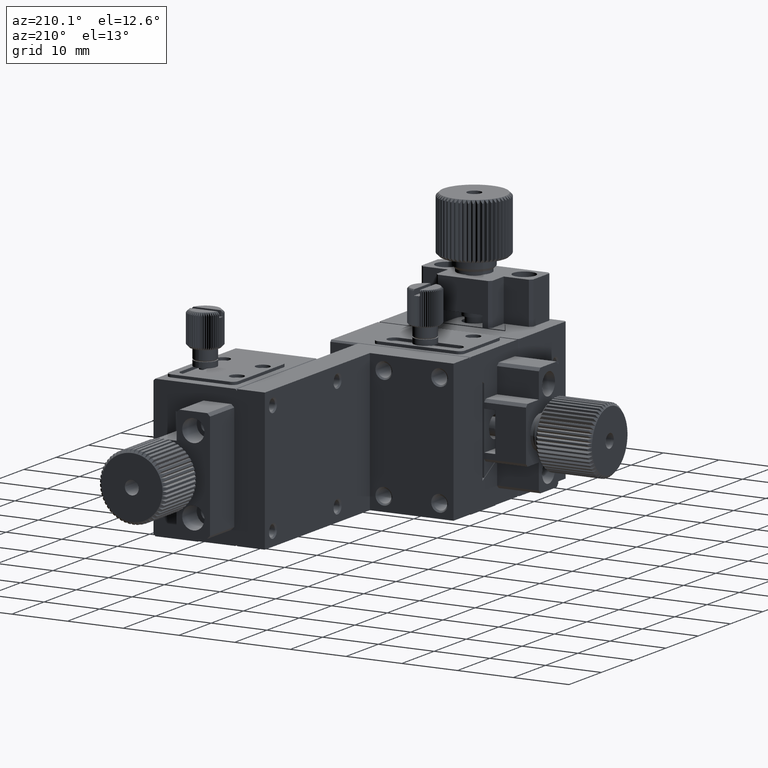
[diagram: clean part render]
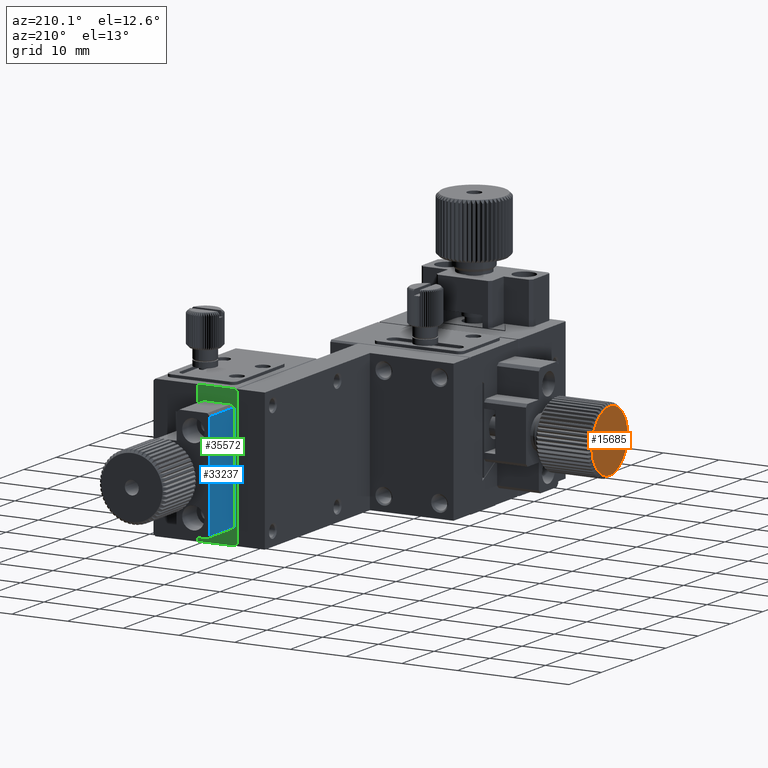
[diagram: same view with three faces highlighted in distinct colors, each labeled with its STEP entity id]
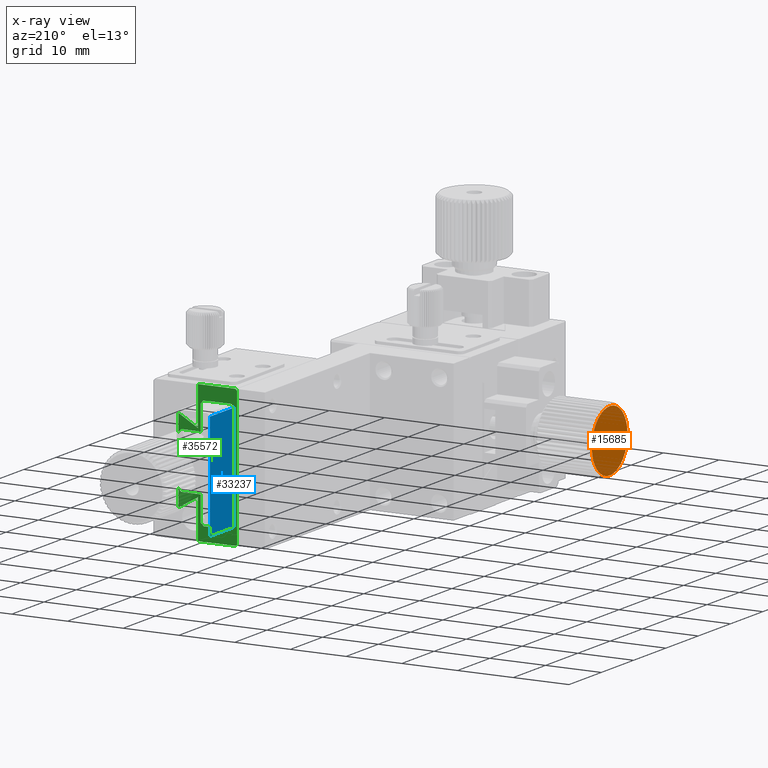
[diagram: x-ray of the same camera — body ghosted, the three highlighted faces saturated]
A machine part, auxiliary view with three faces highlighted in distinct colors.
The next image is the same camera in x-ray (body ghosted, the three faces saturated) — at least one of them is partly hidden behind the body in this view.
Their STEP definitions:

[orange] entity #15685 — the highlighted planar face has unit normal (1, 0, 0).
#6 = EDGE_CURVE ( 'NONE', #46735, #16944, #45151, .T. ) ;
#62 = ORIENTED_EDGE ( 'NONE', *, *, #44079, .F. ) ;
#254 = CARTESIAN_POINT ( 'NONE',  ( -40.50000000000000000, -8.000000000000000000, -12.50000000000000000 ) ) ;
#351 = CIRCLE ( 'NONE', #51860, 5.500000000040472514 ) ;
#434 = CARTESIAN_POINT ( 'NONE',  ( -40.50000000000000000, -9.699593469074740071, -7.269189160338171085 ) ) ;
#777 = CARTESIAN_POINT ( 'NONE',  ( -40.50000000000000000, -10.94704737240612502, -17.14380359029528478 ) ) ;
#821 = DIRECTION ( 'NONE',  ( 1.000000000000000000, 0.000000000000000000, 0.000000000000000000 ) ) ;
#859 = AXIS2_PLACEMENT_3D ( 'NONE', #21561, #42637, #38291 ) ;
#876 = DIRECTION ( 'NONE',  ( 0.000000000000000000, -1.000000000000000000, 0.000000000000000000 ) ) ;
#891 = CIRCLE ( 'NONE', #31456, 5.500000000040472514 ) ;
#899 = ORIENTED_EDGE ( 'NONE', *, *, #48798, .F. ) ;
#1076 = CARTESIAN_POINT ( 'NONE',  ( -40.50000000000000000, -13.32720738624666268, -13.86779437941680548 ) ) ;
#1272 = ORIENTED_EDGE ( 'NONE', *, *, #28508, .F. ) ;
#1303 = EDGE_CURVE ( 'NONE', #40811, #46314, #18191, .T. ) ;
#1420 = AXIS2_PLACEMENT_3D ( 'NONE', #19372, #51984, #44294 ) ;
#1708 = AXIS2_PLACEMENT_3D ( 'NONE', #44701, #22618, #43693 ) ;
#2040 = CIRCLE ( 'NONE', #16933, 5.500000000040472514 ) ;
#2361 = EDGE_CURVE ( 'NONE', #45398, #51222, #24463, .T. ) ;
#2553 = ORIENTED_EDGE ( 'NONE', *, *, #5919, .F. ) ;
#2574 = EDGE_CURVE ( 'NONE', #14637, #20549, #891, .T. ) ;
#2813 = VERTEX_POINT ( 'NONE', #49809 ) ;
#2861 = VERTEX_POINT ( 'NONE', #37273 ) ;
#2872 = VERTEX_POINT ( 'NONE', #21070 ) ;
#2965 = CIRCLE ( 'NONE', #16044, 5.500000000040472514 ) ;
#2966 = ORIENTED_EDGE ( 'NONE', *, *, #48511, .F. ) ;
#3100 = ORIENTED_EDGE ( 'NONE', *, *, #42410, .F. ) ;
#3118 = CARTESIAN_POINT ( 'NONE',  ( -40.50000000000000000, -13.32720738624668044, -11.13220562058326912 ) ) ;
#3171 = DIRECTION ( 'NONE',  ( 1.000000000000000000, 0.000000000000000000, 0.000000000000000000 ) ) ;
#3475 = CIRCLE ( 'NONE', #20033, 1.250000000000000222 ) ;
#3642 = CIRCLE ( 'NONE', #35075, 5.500000000040472514 ) ;
#3656 = DIRECTION ( 'NONE',  ( 1.000000000000000000, 0.000000000000000000, 0.000000000000000000 ) ) ;
#3890 = DIRECTION ( 'NONE',  ( 0.000000000000000000, -1.000000000000000000, 0.000000000000000000 ) ) ;
#3906 = DIRECTION ( 'NONE',  ( 1.000000000000000000, 0.000000000000000000, 0.000000000000000000 ) ) ;
#3947 = EDGE_CURVE ( 'NONE', #47988, #13519, #18950, .T. ) ;
#4084 = DIRECTION ( 'NONE',  ( 1.000000000000000000, 0.000000000000000000, 0.000000000000000000 ) ) ;
#4551 = CARTESIAN_POINT ( 'NONE',  ( -40.50000000000000000, -8.000000000000000000, -12.50000000000000000 ) ) ;
#4857 = ORIENTED_EDGE ( 'NONE', *, *, #16418, .F. ) ;
#4923 = ORIENTED_EDGE ( 'NONE', *, *, #19230, .F. ) ;
#4998 = AXIS2_PLACEMENT_3D ( 'NONE', #4551, #41491, #17126 ) ;
#5180 = ORIENTED_EDGE ( 'NONE', *, *, #54079, .F. ) ;
#5202 = CARTESIAN_POINT ( 'NONE',  ( -40.50000000000000000, -8.000000000000000000, -12.50000000000000000 ) ) ;
#5285 = CARTESIAN_POINT ( 'NONE',  ( -40.50000000000000000, -12.44959346909497100, -9.267181112367635976 ) ) ;
#5336 = CARTESIAN_POINT ( 'NONE',  ( -40.50000000000000000, -3.550406530905049873, -9.267181112367602225 ) ) ;
#5355 = ORIENTED_EDGE ( 'NONE', *, *, #2574, .F. ) ;
#5535 = EDGE_CURVE ( 'NONE', #52164, #13424, #41911, .T. ) ;
#5598 = DIRECTION ( 'NONE',  ( 0.000000000000000000, -1.000000000000000000, 0.000000000000000000 ) ) ;
#5601 = CARTESIAN_POINT ( 'NONE',  ( -40.50000000000000000, -8.000000000000000000, -12.50000000000000000 ) ) ;
#5610 = DIRECTION ( 'NONE',  ( 0.000000000000000000, -1.000000000000000000, 0.000000000000000000 ) ) ;
#5782 = CIRCLE ( 'NONE', #45938, 5.500000000040472514 ) ;
#5810 = DIRECTION ( 'NONE',  ( 1.000000000000000000, 0.000000000000000000, 0.000000000000000000 ) ) ;
#5919 = EDGE_CURVE ( 'NONE', #20373, #20373, #3475, .T. ) ;
#6158 = DIRECTION ( 'NONE',  ( 1.000000000000000000, 0.000000000000000000, 0.000000000000000000 ) ) ;
#6286 = DIRECTION ( 'NONE',  ( 1.000000000000000000, 0.000000000000000000, 0.000000000000000000 ) ) ;
#6418 = EDGE_CURVE ( 'NONE', #2872, #40811, #49645, .T. ) ;
#6543 = VERTEX_POINT ( 'NONE', #48721 ) ;
#6562 = CARTESIAN_POINT ( 'NONE',  ( -40.50000000000000000, -8.000000000000000000, -12.50000000000000000 ) ) ;
#6620 = AXIS2_PLACEMENT_3D ( 'NONE', #34733, #48074, #9571 ) ;
#7109 = VERTEX_POINT ( 'NONE', #777 ) ;
#7119 = DIRECTION ( 'NONE',  ( 1.000000000000000000, 0.000000000000000000, 0.000000000000000000 ) ) ;
#7133 = ORIENTED_EDGE ( 'NONE', *, *, #37128, .F. ) ;
#7235 = DIRECTION ( 'NONE',  ( 1.000000000000000000, 0.000000000000000000, 0.000000000000000000 ) ) ;
#7479 = DIRECTION ( 'NONE',  ( 0.000000000000000000, -1.000000000000000000, 0.000000000000000000 ) ) ;
#7503 = CIRCLE ( 'NONE', #15342, 5.500000000040472514 ) ;
#7511 = DIRECTION ( 'NONE',  ( 0.000000000000000000, -1.000000000000000000, 0.000000000000000000 ) ) ;
#7538 = ORIENTED_EDGE ( 'NONE', *, *, #49063, .F. ) ;
#7557 = CARTESIAN_POINT ( 'NONE',  ( -40.50000000000000000, -8.000000000000000000, -12.50000000000000000 ) ) ;
#7580 = AXIS2_PLACEMENT_3D ( 'NONE', #47505, #51640, #13625 ) ;
#7698 = CIRCLE ( 'NONE', #28635, 5.500000000040472514 ) ;
#7729 = DIRECTION ( 'NONE',  ( 1.000000000000000000, 0.000000000000000000, 0.000000000000000000 ) ) ;
#7959 = DIRECTION ( 'NONE',  ( 1.000000000000000000, 0.000000000000000000, 0.000000000000000000 ) ) ;
#8014 = VERTEX_POINT ( 'NONE', #51725 ) ;
#8225 = DIRECTION ( 'NONE',  ( 0.000000000000000000, -1.000000000000000000, 0.000000000000000000 ) ) ;
#8235 = CIRCLE ( 'NONE', #42254, 5.500000000040472514 ) ;
#8236 = AXIS2_PLACEMENT_3D ( 'NONE', #14015, #34561, #22476 ) ;
#8359 = CARTESIAN_POINT ( 'NONE',  ( -40.50000000000000000, -13.11377067242302630, -10.47531496021940711 ) ) ;
#8479 = CARTESIAN_POINT ( 'NONE',  ( -40.50000000000000000, -8.000000000000000000, -12.50000000000000000 ) ) ;
#8751 = DIRECTION ( 'NONE',  ( 1.000000000000000000, 0.000000000000000000, 0.000000000000000000 ) ) ;
#8770 = EDGE_CURVE ( 'NONE', #11980, #24341, #25589, .T. ) ;
#8890 = ORIENTED_EDGE ( 'NONE', *, *, #48756, .F. ) ;
#9014 = CARTESIAN_POINT ( 'NONE',  ( -40.50000000000000000, -8.000000000000000000, -12.50000000000000000 ) ) ;
#9174 = AXIS2_PLACEMENT_3D ( 'NONE', #50041, #49767, #8225 ) ;
#9467 = DIRECTION ( 'NONE',  ( 0.000000000000000000, -1.000000000000000000, 0.000000000000000000 ) ) ;
#9487 = AXIS2_PLACEMENT_3D ( 'NONE', #14103, #17398, #46656 ) ;
#9571 = DIRECTION ( 'NONE',  ( 0.000000000000000000, -1.000000000000000000, 0.000000000000000000 ) ) ;
#9597 = DIRECTION ( 'NONE',  ( 0.000000000000000000, -1.000000000000000000, 0.000000000000000000 ) ) ;
#9775 = AXIS2_PLACEMENT_3D ( 'NONE', #14341, #39249, #5598 ) ;
#9935 = DIRECTION ( 'NONE',  ( 0.000000000000000000, -1.000000000000000000, 0.000000000000000000 ) ) ;
#9952 = EDGE_CURVE ( 'NONE', #2813, #7109, #41408, .T. ) ;
#9954 = AXIS2_PLACEMENT_3D ( 'NONE', #45567, #13280, #16584 ) ;
#10015 = CIRCLE ( 'NONE', #11776, 5.500000000040472514 ) ;
#10068 = CARTESIAN_POINT ( 'NONE',  ( -40.50000000000000000, -9.699593469074667240, -17.73081083966185290 ) ) ;
#10085 = EDGE_CURVE ( 'NONE', #20549, #6543, #27406, .T. ) ;
#10216 = CARTESIAN_POINT ( 'NONE',  ( -40.50000000000000000, -8.000000000000000000, -12.50000000000000000 ) ) ;
#10334 = AXIS2_PLACEMENT_3D ( 'NONE', #35838, #7119, #32511 ) ;
#10551 = DIRECTION ( 'NONE',  ( 0.000000000000000000, -1.000000000000000000, 0.000000000000000000 ) ) ;
#10665 = CARTESIAN_POINT ( 'NONE',  ( -40.50000000000000000, -8.000000000000000000, -12.50000000000000000 ) ) ;
#10706 = VERTEX_POINT ( 'NONE', #5336 ) ;
#11012 = CARTESIAN_POINT ( 'NONE',  ( -40.50000000000000000, -8.000000000000000000, -12.50000000000000000 ) ) ;
#11022 = CARTESIAN_POINT ( 'NONE',  ( -40.50000000000000000, -8.345347857413784709, -7.010852993604115291 ) ) ;
#11104 = CIRCLE ( 'NONE', #1420, 5.500000000040472514 ) ;
#11493 = ORIENTED_EDGE ( 'NONE', *, *, #53659, .F. ) ;
#11526 = DIRECTION ( 'NONE',  ( 1.000000000000000000, 0.000000000000000000, 0.000000000000000000 ) ) ;
#11596 = EDGE_CURVE ( 'NONE', #2861, #37304, #21449, .T. ) ;
#11776 = AXIS2_PLACEMENT_3D ( 'NONE', #46949, #34384, #30529 ) ;
#11938 = CIRCLE ( 'NONE', #24142, 5.500000000040472514 ) ;
#11980 = VERTEX_POINT ( 'NONE', #37212 ) ;
#12037 = ORIENTED_EDGE ( 'NONE', *, *, #34242, .F. ) ;
#12140 = CARTESIAN_POINT ( 'NONE',  ( -40.50000000000000000, -12.00932745084728914, -8.734990917364529039 ) ) ;
#12246 = ORIENTED_EDGE ( 'NONE', *, *, #33262, .F. ) ;
#12455 = EDGE_LOOP ( 'NONE', ( #19390, #21984, #40409, #11493, #24324, #4923, #25251, #33168, #53425, #52061, #44588, #48982, #29115, #7133, #22544, #12246, #49052, #51161, #26938, #36279, #40549, #4857, #1272, #899, #12037, #19554, #5355, #5180, #52148, #62, #2966, #3100, #44037, #53705, #7538, #25602, #29919, #38032, #13099, #53007, #16812, #8890, #13390, #33616, #35164, #35780, #25980, #20669, #26437, #41163 ) ) ;
#12529 = CIRCLE ( 'NONE', #20358, 5.500000000040472514 ) ;
#12594 = CIRCLE ( 'NONE', #19558, 5.500000000040472514 ) ;
#12632 = VERTEX_POINT ( 'NONE', #35446 ) ;
#12790 = VERTEX_POINT ( 'NONE', #8359 ) ;
#12902 = DIRECTION ( 'NONE',  ( 0.000000000000000000, -1.000000000000000000, 0.000000000000000000 ) ) ;
#12931 = VERTEX_POINT ( 'NONE', #43310 ) ;
#13099 = ORIENTED_EDGE ( 'NONE', *, *, #32759, .F. ) ;
#13280 = DIRECTION ( 'NONE',  ( 1.000000000000000000, 0.000000000000000000, 0.000000000000000000 ) ) ;
#13390 = ORIENTED_EDGE ( 'NONE', *, *, #50619, .F. ) ;
#13424 = VERTEX_POINT ( 'NONE', #10068 ) ;
#13487 = DIRECTION ( 'NONE',  ( 0.000000000000000000, -1.000000000000000000, 0.000000000000000000 ) ) ;
#13519 = VERTEX_POINT ( 'NONE', #39583 ) ;
#13625 = DIRECTION ( 'NONE',  ( 0.000000000000000000, -1.000000000000000000, 0.000000000000000000 ) ) ;
#13939 = DIRECTION ( 'NONE',  ( 0.000000000000000000, -1.000000000000000000, 0.000000000000000000 ) ) ;
#14012 = DIRECTION ( 'NONE',  ( 0.000000000000000000, -1.000000000000000000, 0.000000000000000000 ) ) ;
#14015 = CARTESIAN_POINT ( 'NONE',  ( -40.50000000000000000, -8.000000000000000000, -12.50000000000000000 ) ) ;
#14103 = CARTESIAN_POINT ( 'NONE',  ( -40.50000000000000000, -8.000000000000000000, -12.50000000000000000 ) ) ;
#14341 = CARTESIAN_POINT ( 'NONE',  ( -40.50000000000000000, -8.000000000000000000, -12.50000000000000000 ) ) ;
#14572 = DIRECTION ( 'NONE',  ( 1.000000000000000000, 0.000000000000000000, 0.000000000000000000 ) ) ;
#14637 = VERTEX_POINT ( 'NONE', #26429 ) ;
#14911 = CIRCLE ( 'NONE', #15758, 5.500000000040472514 ) ;
#15003 = CARTESIAN_POINT ( 'NONE',  ( -40.50000000000000000, -6.969402769770949746, -7.097420120952454781 ) ) ;
#15342 = AXIS2_PLACEMENT_3D ( 'NONE', #31749, #11526, #40531 ) ;
#15685 = ADVANCED_FACE ( 'NONE', ( #28971, #15854 ), #33087, .F. ) ;
#15758 = AXIS2_PLACEMENT_3D ( 'NONE', #254, #8751, #25396 ) ;
#15854 = FACE_BOUND ( 'NONE', #50725, .T. ) ;
#16044 = AXIS2_PLACEMENT_3D ( 'NONE', #17622, #25856, #9467 ) ;
#16165 = CARTESIAN_POINT ( 'NONE',  ( -40.50000000000000000, -5.658213896374811647, -17.47654878859970040 ) ) ;
#16418 = EDGE_CURVE ( 'NONE', #29257, #29980, #12529, .T. ) ;
#16584 = DIRECTION ( 'NONE',  ( 0.000000000000000000, -1.000000000000000000, 0.000000000000000000 ) ) ;
#16652 = VERTEX_POINT ( 'NONE', #51772 ) ;
#16697 = DIRECTION ( 'NONE',  ( 1.000000000000000000, 0.000000000000000000, 0.000000000000000000 ) ) ;
#16744 = EDGE_CURVE ( 'NONE', #51288, #20475, #351, .T. ) ;
#16812 = ORIENTED_EDGE ( 'NONE', *, *, #8770, .F. ) ;
#16868 = AXIS2_PLACEMENT_3D ( 'NONE', #11012, #27910, #40800 ) ;
#16933 = AXIS2_PLACEMENT_3D ( 'NONE', #29137, #21186, #21969 ) ;
#16944 = VERTEX_POINT ( 'NONE', #32166 ) ;
#17126 = DIRECTION ( 'NONE',  ( 0.000000000000000000, -1.000000000000000000, 0.000000000000000000 ) ) ;
#17249 = VERTEX_POINT ( 'NONE', #26909 ) ;
#17398 = DIRECTION ( 'NONE',  ( 1.000000000000000000, 0.000000000000000000, 0.000000000000000000 ) ) ;
#17553 = CARTESIAN_POINT ( 'NONE',  ( -40.50000000000000000, -8.000000000000000000, -12.50000000000000000 ) ) ;
#17616 = DIRECTION ( 'NONE',  ( 1.000000000000000000, 0.000000000000000000, 0.000000000000000000 ) ) ;
#17622 = CARTESIAN_POINT ( 'NONE',  ( -40.50000000000000000, -8.000000000000000000, -12.50000000000000000 ) ) ;
#17748 = CIRCLE ( 'NONE', #9954, 5.500000000040472514 ) ;
#17932 = EDGE_CURVE ( 'NONE', #22970, #2861, #24895, .T. ) ;
#18049 = VERTEX_POINT ( 'NONE', #35303 ) ;
#18191 = CIRCLE ( 'NONE', #9487, 5.500000000040472514 ) ;
#18361 = EDGE_CURVE ( 'NONE', #7109, #52164, #48868, .T. ) ;
#18374 = EDGE_CURVE ( 'NONE', #22576, #21096, #52367, .T. ) ;
#18651 = CARTESIAN_POINT ( 'NONE',  ( -40.50000000000000000, -8.000000000000000000, -12.50000000000000000 ) ) ;
#18857 = DIRECTION ( 'NONE',  ( 1.000000000000000000, 0.000000000000000000, 0.000000000000000000 ) ) ;
#18950 = CIRCLE ( 'NONE', #26817, 5.500000000040472514 ) ;
#19128 = CARTESIAN_POINT ( 'NONE',  ( -40.50000000000000000, -8.000000000000000000, -12.50000000000000000 ) ) ;
#19230 = EDGE_CURVE ( 'NONE', #37304, #23911, #23592, .T. ) ;
#19281 = CIRCLE ( 'NONE', #47221, 5.500000000040472514 ) ;
#19314 = EDGE_CURVE ( 'NONE', #21096, #45398, #14911, .T. ) ;
#19372 = CARTESIAN_POINT ( 'NONE',  ( -40.50000000000000000, -8.000000000000000000, -12.50000000000000000 ) ) ;
#19390 = ORIENTED_EDGE ( 'NONE', *, *, #45139, .F. ) ;
#19554 = ORIENTED_EDGE ( 'NONE', *, *, #10085, .F. ) ;
#19558 = AXIS2_PLACEMENT_3D ( 'NONE', #19729, #36443, #44105 ) ;
#19729 = CARTESIAN_POINT ( 'NONE',  ( -40.50000000000000000, -8.000000000000000000, -12.50000000000000000 ) ) ;
#19964 = DIRECTION ( 'NONE',  ( 0.000000000000000000, -1.000000000000000000, 0.000000000000000000 ) ) ;
#20033 = AXIS2_PLACEMENT_3D ( 'NONE', #20147, #49972, #36873 ) ;
#20147 = CARTESIAN_POINT ( 'NONE',  ( -40.50000000000000000, -8.000000000000000000, -12.50000000000000000 ) ) ;
#20358 = AXIS2_PLACEMENT_3D ( 'NONE', #7557, #3171, #36275 ) ;
#20373 = VERTEX_POINT ( 'NONE', #41185 ) ;
#20475 = VERTEX_POINT ( 'NONE', #49933 ) ;
#20549 = VERTEX_POINT ( 'NONE', #29144 ) ;
#20669 = ORIENTED_EDGE ( 'NONE', *, *, #2361, .F. ) ;
#20712 = EDGE_CURVE ( 'NONE', #46314, #12632, #48196, .T. ) ;
#20965 = EDGE_CURVE ( 'NONE', #8014, #47988, #33364, .T. ) ;
#21070 = CARTESIAN_POINT ( 'NONE',  ( -40.50000000000000000, -6.969402769770869810, -17.90257987904752923 ) ) ;
#21096 = VERTEX_POINT ( 'NONE', #38143 ) ;
#21186 = DIRECTION ( 'NONE',  ( 1.000000000000000000, 0.000000000000000000, 0.000000000000000000 ) ) ;
#21365 = DIRECTION ( 'NONE',  ( 1.000000000000000000, 0.000000000000000000, 0.000000000000000000 ) ) ;
#21417 = CARTESIAN_POINT ( 'NONE',  ( -40.50000000000000000, -8.000000000000000000, -12.50000000000000000 ) ) ;
#21449 = CIRCLE ( 'NONE', #45026, 5.500000000040472514 ) ;
#21561 = CARTESIAN_POINT ( 'NONE',  ( -40.50000000000000000, -8.000000000000000000, -12.50000000000000000 ) ) ;
#21886 = AXIS2_PLACEMENT_3D ( 'NONE', #8479, #33322, #38007 ) ;
#21969 = DIRECTION ( 'NONE',  ( 0.000000000000000000, -1.000000000000000000, 0.000000000000000000 ) ) ;
#21984 = ORIENTED_EDGE ( 'NONE', *, *, #35128, .F. ) ;
#22224 = CARTESIAN_POINT ( 'NONE',  ( -40.50000000000000000, -3.180313259723248631, -15.14964520757886923 ) ) ;
#22476 = DIRECTION ( 'NONE',  ( 0.000000000000000000, -1.000000000000000000, 0.000000000000000000 ) ) ;
#22544 = ORIENTED_EDGE ( 'NONE', *, *, #40186, .F. ) ;
#22576 = VERTEX_POINT ( 'NONE', #30376 ) ;
#22595 = DIRECTION ( 'NONE',  ( 0.000000000000000000, -1.000000000000000000, 0.000000000000000000 ) ) ;
#22618 = DIRECTION ( 'NONE',  ( 1.000000000000000000, 0.000000000000000000, 0.000000000000000000 ) ) ;
#22672 = CARTESIAN_POINT ( 'NONE',  ( -40.50000000000000000, -5.658213896374879148, -7.523451211400265848 ) ) ;
#22970 = VERTEX_POINT ( 'NONE', #33320 ) ;
#23128 = EDGE_CURVE ( 'NONE', #28958, #48889, #31143, .T. ) ;
#23189 = CIRCLE ( 'NONE', #6620, 5.500000000040472514 ) ;
#23207 = DIRECTION ( 'NONE',  ( 1.000000000000000000, 0.000000000000000000, 0.000000000000000000 ) ) ;
#23270 = CIRCLE ( 'NONE', #29412, 5.500000000040472514 ) ;
#23579 = CIRCLE ( 'NONE', #34953, 5.500000000040472514 ) ;
#23584 = DIRECTION ( 'NONE',  ( 1.000000000000000000, 0.000000000000000000, 0.000000000000000000 ) ) ;
#23592 = CIRCLE ( 'NONE', #53360, 5.500000000040472514 ) ;
#23911 = VERTEX_POINT ( 'NONE', #22224 ) ;
#24109 = CARTESIAN_POINT ( 'NONE',  ( -40.50000000000000000, -8.000000000000000000, -12.50000000000000000 ) ) ;
#24142 = AXIS2_PLACEMENT_3D ( 'NONE', #33924, #821, #13939 ) ;
#24324 = ORIENTED_EDGE ( 'NONE', *, *, #30059, .F. ) ;
#24341 = VERTEX_POINT ( 'NONE', #15003 ) ;
#24421 = CARTESIAN_POINT ( 'NONE',  ( -40.50000000000000000, -8.000000000000000000, -12.50000000000000000 ) ) ;
#24463 = CIRCLE ( 'NONE', #49827, 5.500000000040472514 ) ;
#24895 = CIRCLE ( 'NONE', #40654, 5.500000000040472514 ) ;
#24906 = CARTESIAN_POINT ( 'NONE',  ( -40.50000000000000000, -10.94704737240619075, -7.856196409704758743 ) ) ;
#25103 = CARTESIAN_POINT ( 'NONE',  ( -40.50000000000000000, -2.543369142730210530, -13.18933278460867164 ) ) ;
#25251 = ORIENTED_EDGE ( 'NONE', *, *, #11596, .F. ) ;
#25371 = DIRECTION ( 'NONE',  ( 0.000000000000000000, -1.000000000000000000, 0.000000000000000000 ) ) ;
#25396 = DIRECTION ( 'NONE',  ( 0.000000000000000000, -1.000000000000000000, 0.000000000000000000 ) ) ;
#25455 = AXIS2_PLACEMENT_3D ( 'NONE', #45145, #7959, #19964 ) ;
#25589 = CIRCLE ( 'NONE', #53579, 5.500000000040472514 ) ;
#25602 = ORIENTED_EDGE ( 'NONE', *, *, #6, .F. ) ;
#25671 = DIRECTION ( 'NONE',  ( 0.000000000000000000, -1.000000000000000000, 0.000000000000000000 ) ) ;
#25856 = DIRECTION ( 'NONE',  ( 1.000000000000000000, 0.000000000000000000, 0.000000000000000000 ) ) ;
#25980 = ORIENTED_EDGE ( 'NONE', *, *, #52160, .F. ) ;
#25992 = CARTESIAN_POINT ( 'NONE',  ( -40.50000000000000000, -8.000000000000000000, -12.50000000000000000 ) ) ;
#26429 = CARTESIAN_POINT ( 'NONE',  ( -40.50000000000000000, -13.45663085726978458, -11.81066721539129105 ) ) ;
#26437 = ORIENTED_EDGE ( 'NONE', *, *, #19314, .F. ) ;
#26817 = AXIS2_PLACEMENT_3D ( 'NONE', #47718, #26916, #10551 ) ;
#26909 = CARTESIAN_POINT ( 'NONE',  ( -40.50000000000000000, -2.886229327576959047, -14.52468503978055914 ) ) ;
#26916 = DIRECTION ( 'NONE',  ( 1.000000000000000000, 0.000000000000000000, 0.000000000000000000 ) ) ;
#26938 = ORIENTED_EDGE ( 'NONE', *, *, #9952, .F. ) ;
#27233 = DIRECTION ( 'NONE',  ( 1.000000000000000000, 0.000000000000000000, 0.000000000000000000 ) ) ;
#27406 = CIRCLE ( 'NONE', #8236, 5.500000000040472514 ) ;
#27910 = DIRECTION ( 'NONE',  ( 1.000000000000000000, 0.000000000000000000, 0.000000000000000000 ) ) ;
#28016 = VERTEX_POINT ( 'NONE', #1076 ) ;
#28508 = EDGE_CURVE ( 'NONE', #47543, #29257, #8235, .T. ) ;
#28635 = AXIS2_PLACEMENT_3D ( 'NONE', #31133, #34968, #47800 ) ;
#28927 = EDGE_CURVE ( 'NONE', #16652, #31524, #12594, .T. ) ;
#28958 = VERTEX_POINT ( 'NONE', #11022 ) ;
#28971 = FACE_OUTER_BOUND ( 'NONE', #12455, .T. ) ;
#29115 = ORIENTED_EDGE ( 'NONE', *, *, #32785, .F. ) ;
#29137 = CARTESIAN_POINT ( 'NONE',  ( -40.50000000000000000, -8.000000000000000000, -12.50000000000000000 ) ) ;
#29144 = CARTESIAN_POINT ( 'NONE',  ( -40.50000000000000000, -13.50000000004047251, -12.50000000000000000 ) ) ;
#29257 = VERTEX_POINT ( 'NONE', #31967 ) ;
#29379 = VERTEX_POINT ( 'NONE', #40202 ) ;
#29412 = AXIS2_PLACEMENT_3D ( 'NONE', #10665, #18857, #31675 ) ;
#29607 = CARTESIAN_POINT ( 'NONE',  ( -40.50000000000000000, -7.654652142586175323, -17.98914700639588560 ) ) ;
#29789 = AXIS2_PLACEMENT_3D ( 'NONE', #24109, #7729, #3890 ) ;
#29919 = ORIENTED_EDGE ( 'NONE', *, *, #50099, .F. ) ;
#29980 = VERTEX_POINT ( 'NONE', #51851 ) ;
#30059 = EDGE_CURVE ( 'NONE', #23911, #17249, #46661, .T. ) ;
#30376 = CARTESIAN_POINT ( 'NONE',  ( -40.50000000000000000, -2.543369142730218080, -11.81066721539125197 ) ) ;
#30529 = DIRECTION ( 'NONE',  ( 0.000000000000000000, -1.000000000000000000, 0.000000000000000000 ) ) ;
#30630 = CARTESIAN_POINT ( 'NONE',  ( -40.50000000000000000, -8.000000000000000000, -12.50000000000000000 ) ) ;
#30965 = AXIS2_PLACEMENT_3D ( 'NONE', #47968, #6158, #31038 ) ;
#31038 = DIRECTION ( 'NONE',  ( 0.000000000000000000, -1.000000000000000000, 0.000000000000000000 ) ) ;
#31133 = CARTESIAN_POINT ( 'NONE',  ( -40.50000000000000000, -8.000000000000000000, -12.50000000000000000 ) ) ;
#31143 = CIRCLE ( 'NONE', #7580, 5.500000000040472514 ) ;
#31456 = AXIS2_PLACEMENT_3D ( 'NONE', #18651, #14572, #9935 ) ;
#31460 = CIRCLE ( 'NONE', #46291, 5.500000000040472514 ) ;
#31524 = VERTEX_POINT ( 'NONE', #25103 ) ;
#31642 = VERTEX_POINT ( 'NONE', #43395 ) ;
#31675 = DIRECTION ( 'NONE',  ( 0.000000000000000000, -1.000000000000000000, 0.000000000000000000 ) ) ;
#31733 = AXIS2_PLACEMENT_3D ( 'NONE', #5601, #49331, #7511 ) ;
#31749 = CARTESIAN_POINT ( 'NONE',  ( -40.50000000000000000, -8.000000000000000000, -12.50000000000000000 ) ) ;
#31796 = CARTESIAN_POINT ( 'NONE',  ( -40.50000000000000000, -8.000000000000000000, -12.50000000000000000 ) ) ;
#31967 = CARTESIAN_POINT ( 'NONE',  ( -40.50000000000000000, -12.81968674027669586, -15.14964520757897048 ) ) ;
#32166 = CARTESIAN_POINT ( 'NONE',  ( -40.50000000000000000, -10.34178610362515371, -7.523451211400282723 ) ) ;
#32349 = CARTESIAN_POINT ( 'NONE',  ( -40.50000000000000000, -8.000000000000000000, -12.50000000000000000 ) ) ;
#32389 = EDGE_CURVE ( 'NONE', #12790, #49552, #5782, .T. ) ;
#32504 = AXIS2_PLACEMENT_3D ( 'NONE', #34864, #35416, #47404 ) ;
#32511 = DIRECTION ( 'NONE',  ( 0.000000000000000000, -1.000000000000000000, 0.000000000000000000 ) ) ;
#32759 = EDGE_CURVE ( 'NONE', #18049, #28958, #11938, .T. ) ;
#32785 = EDGE_CURVE ( 'NONE', #45878, #2872, #11104, .T. ) ;
#33087 = PLANE ( 'NONE',  #9174 ) ;
#33168 = ORIENTED_EDGE ( 'NONE', *, *, #17932, .F. ) ;
#33262 = EDGE_CURVE ( 'NONE', #13424, #12931, #53032, .T. ) ;
#33320 = CARTESIAN_POINT ( 'NONE',  ( -40.50000000000000000, -4.494168056356358854, -16.73782283529798320 ) ) ;
#33322 = DIRECTION ( 'NONE',  ( 1.000000000000000000, 0.000000000000000000, 0.000000000000000000 ) ) ;
#33343 = DIRECTION ( 'NONE',  ( 1.000000000000000000, 0.000000000000000000, 0.000000000000000000 ) ) ;
#33364 = CIRCLE ( 'NONE', #35131, 5.500000000040472514 ) ;
#33616 = ORIENTED_EDGE ( 'NONE', *, *, #3947, .F. ) ;
#33663 = CARTESIAN_POINT ( 'NONE',  ( -40.50000000000000000, -3.180313259723287711, -9.850354792421065042 ) ) ;
#33796 = CARTESIAN_POINT ( 'NONE',  ( -40.50000000000000000, -8.000000000000000000, -12.50000000000000000 ) ) ;
#33841 = VERTEX_POINT ( 'NONE', #22672 ) ;
#33924 = CARTESIAN_POINT ( 'NONE',  ( -40.50000000000000000, -8.000000000000000000, -12.50000000000000000 ) ) ;
#34182 = AXIS2_PLACEMENT_3D ( 'NONE', #6562, #23207, #43460 ) ;
#34242 = EDGE_CURVE ( 'NONE', #6543, #28016, #7698, .T. ) ;
#34384 = DIRECTION ( 'NONE',  ( 1.000000000000000000, 0.000000000000000000, 0.000000000000000000 ) ) ;
#34561 = DIRECTION ( 'NONE',  ( 1.000000000000000000, 0.000000000000000000, 0.000000000000000000 ) ) ;
#34733 = CARTESIAN_POINT ( 'NONE',  ( -40.50000000000000000, -8.000000000000000000, -12.50000000000000000 ) ) ;
#34864 = CARTESIAN_POINT ( 'NONE',  ( -40.50000000000000000, -8.000000000000000000, -12.50000000000000000 ) ) ;
#34953 = AXIS2_PLACEMENT_3D ( 'NONE', #39140, #6286, #9597 ) ;
#34968 = DIRECTION ( 'NONE',  ( 1.000000000000000000, 0.000000000000000000, 0.000000000000000000 ) ) ;
#35050 = EDGE_CURVE ( 'NONE', #10706, #8014, #7503, .T. ) ;
#35075 = AXIS2_PLACEMENT_3D ( 'NONE', #5202, #16697, #53955 ) ;
#35128 = EDGE_CURVE ( 'NONE', #31524, #31642, #3642, .T. ) ;
#35131 = AXIS2_PLACEMENT_3D ( 'NONE', #24421, #3656, #45490 ) ;
#35164 = ORIENTED_EDGE ( 'NONE', *, *, #20965, .F. ) ;
#35263 = AXIS2_PLACEMENT_3D ( 'NONE', #21417, #50157, #13487 ) ;
#35293 = DIRECTION ( 'NONE',  ( 0.000000000000000000, -1.000000000000000000, 0.000000000000000000 ) ) ;
#35303 = CARTESIAN_POINT ( 'NONE',  ( -40.50000000000000000, -7.654652142586251706, -7.010852993604113514 ) ) ;
#35347 = CARTESIAN_POINT ( 'NONE',  ( -40.50000000000000000, -12.00932745084723408, -16.26500908263552958 ) ) ;
#35416 = DIRECTION ( 'NONE',  ( 1.000000000000000000, 0.000000000000000000, 0.000000000000000000 ) ) ;
#35446 = CARTESIAN_POINT ( 'NONE',  ( -40.50000000000000000, -5.052952627593778168, -17.14380359029522083 ) ) ;
#35780 = ORIENTED_EDGE ( 'NONE', *, *, #35050, .F. ) ;
#35838 = CARTESIAN_POINT ( 'NONE',  ( -40.50000000000000000, -8.000000000000000000, -12.50000000000000000 ) ) ;
#35917 = VERTEX_POINT ( 'NONE', #5285 ) ;
#36275 = DIRECTION ( 'NONE',  ( 0.000000000000000000, -1.000000000000000000, 0.000000000000000000 ) ) ;
#36279 = ORIENTED_EDGE ( 'NONE', *, *, #51147, .F. ) ;
#36307 = CARTESIAN_POINT ( 'NONE',  ( -40.50000000000000000, -8.000000000000000000, -12.50000000000000000 ) ) ;
#36443 = DIRECTION ( 'NONE',  ( 1.000000000000000000, 0.000000000000000000, 0.000000000000000000 ) ) ;
#36873 = DIRECTION ( 'NONE',  ( 0.000000000000000000, 1.000000000000000000, 0.000000000000000000 ) ) ;
#36947 = CIRCLE ( 'NONE', #16868, 5.500000000040472514 ) ;
#37128 = EDGE_CURVE ( 'NONE', #29379, #45878, #17748, .T. ) ;
#37212 = CARTESIAN_POINT ( 'NONE',  ( -40.50000000000000000, -6.300406530925294568, -7.269189160338159539 ) ) ;
#37273 = CARTESIAN_POINT ( 'NONE',  ( -40.50000000000000000, -3.990672549152684212, -16.26500908263544076 ) ) ;
#37304 = VERTEX_POINT ( 'NONE', #40901 ) ;
#37690 = CIRCLE ( 'NONE', #25455, 5.500000000040472514 ) ;
#38007 = DIRECTION ( 'NONE',  ( 0.000000000000000000, -1.000000000000000000, 0.000000000000000000 ) ) ;
#38032 = ORIENTED_EDGE ( 'NONE', *, *, #23128, .F. ) ;
#38143 = CARTESIAN_POINT ( 'NONE',  ( -40.50000000000000000, -2.672792613753329327, -11.13220562058323182 ) ) ;
#38291 = DIRECTION ( 'NONE',  ( 0.000000000000000000, -1.000000000000000000, 0.000000000000000000 ) ) ;
#38306 = AXIS2_PLACEMENT_3D ( 'NONE', #10216, #39455, #44373 ) ;
#38642 = CARTESIAN_POINT ( 'NONE',  ( -40.50000000000000000, -8.000000000000000000, -12.50000000000000000 ) ) ;
#38673 = CIRCLE ( 'NONE', #32504, 5.500000000040472514 ) ;
#38787 = DIRECTION ( 'NONE',  ( 0.000000000000000000, -1.000000000000000000, 0.000000000000000000 ) ) ;
#39140 = CARTESIAN_POINT ( 'NONE',  ( -40.50000000000000000, -8.000000000000000000, -12.50000000000000000 ) ) ;
#39249 = DIRECTION ( 'NONE',  ( 1.000000000000000000, 0.000000000000000000, 0.000000000000000000 ) ) ;
#39455 = DIRECTION ( 'NONE',  ( 1.000000000000000000, 0.000000000000000000, 0.000000000000000000 ) ) ;
#39583 = CARTESIAN_POINT ( 'NONE',  ( -40.50000000000000000, -5.052952627593843005, -7.856196409704738315 ) ) ;
#40186 = EDGE_CURVE ( 'NONE', #12931, #29379, #40329, .T. ) ;
#40202 = CARTESIAN_POINT ( 'NONE',  ( -40.50000000000000000, -8.345347857413706549, -17.98914700639589270 ) ) ;
#40293 = DIRECTION ( 'NONE',  ( 0.000000000000000000, -1.000000000000000000, 0.000000000000000000 ) ) ;
#40327 = DIRECTION ( 'NONE',  ( 0.000000000000000000, -1.000000000000000000, 0.000000000000000000 ) ) ;
#40329 = CIRCLE ( 'NONE', #34182, 5.500000000040472514 ) ;
#40409 = ORIENTED_EDGE ( 'NONE', *, *, #28927, .F. ) ;
#40531 = DIRECTION ( 'NONE',  ( 0.000000000000000000, -1.000000000000000000, 0.000000000000000000 ) ) ;
#40549 = ORIENTED_EDGE ( 'NONE', *, *, #50535, .F. ) ;
#40654 = AXIS2_PLACEMENT_3D ( 'NONE', #30630, #51192, #46240 ) ;
#40792 = AXIS2_PLACEMENT_3D ( 'NONE', #49344, #53759, #40327 ) ;
#40800 = DIRECTION ( 'NONE',  ( 0.000000000000000000, -1.000000000000000000, 0.000000000000000000 ) ) ;
#40811 = VERTEX_POINT ( 'NONE', #41188 ) ;
#40884 = EDGE_CURVE ( 'NONE', #24341, #18049, #2040, .T. ) ;
#40901 = CARTESIAN_POINT ( 'NONE',  ( -40.50000000000000000, -3.550406530905004576, -15.73281888763233205 ) ) ;
#41115 = EDGE_CURVE ( 'NONE', #12632, #22970, #44879, .T. ) ;
#41163 = ORIENTED_EDGE ( 'NONE', *, *, #18374, .F. ) ;
#41185 = CARTESIAN_POINT ( 'NONE',  ( -40.50000000000000000, -6.750000000000000000, -12.50000000000000000 ) ) ;
#41188 = CARTESIAN_POINT ( 'NONE',  ( -40.50000000000000000, -6.300406530925221738, -17.73081083966181382 ) ) ;
#41408 = CIRCLE ( 'NONE', #35263, 5.500000000040472514 ) ;
#41491 = DIRECTION ( 'NONE',  ( 1.000000000000000000, 0.000000000000000000, 0.000000000000000000 ) ) ;
#41911 = CIRCLE ( 'NONE', #41934, 5.500000000040472514 ) ;
#41934 = AXIS2_PLACEMENT_3D ( 'NONE', #31796, #23584, #40293 ) ;
#42254 = AXIS2_PLACEMENT_3D ( 'NONE', #32349, #7235, #44971 ) ;
#42410 = EDGE_CURVE ( 'NONE', #50890, #35917, #53613, .T. ) ;
#42637 = DIRECTION ( 'NONE',  ( 1.000000000000000000, 0.000000000000000000, 0.000000000000000000 ) ) ;
#43310 = CARTESIAN_POINT ( 'NONE',  ( -40.50000000000000000, -9.030597230229016503, -17.90257987904755765 ) ) ;
#43395 = CARTESIAN_POINT ( 'NONE',  ( -40.50000000000000000, -2.499999999959527486, -12.50000000000000000 ) ) ;
#43460 = DIRECTION ( 'NONE',  ( 0.000000000000000000, -1.000000000000000000, 0.000000000000000000 ) ) ;
#43471 = CARTESIAN_POINT ( 'NONE',  ( -40.50000000000000000, -13.11377067242299788, -14.52468503978066927 ) ) ;
#43693 = DIRECTION ( 'NONE',  ( 0.000000000000000000, -1.000000000000000000, 0.000000000000000000 ) ) ;
#44037 = ORIENTED_EDGE ( 'NONE', *, *, #47813, .F. ) ;
#44079 = EDGE_CURVE ( 'NONE', #51948, #12790, #23270, .T. ) ;
#44105 = DIRECTION ( 'NONE',  ( 0.000000000000000000, -1.000000000000000000, 0.000000000000000000 ) ) ;
#44294 = DIRECTION ( 'NONE',  ( 0.000000000000000000, -1.000000000000000000, 0.000000000000000000 ) ) ;
#44373 = DIRECTION ( 'NONE',  ( 0.000000000000000000, -1.000000000000000000, 0.000000000000000000 ) ) ;
#44487 = CARTESIAN_POINT ( 'NONE',  ( -40.50000000000000000, -12.81968674027673316, -9.850354792421097017 ) ) ;
#44588 = ORIENTED_EDGE ( 'NONE', *, *, #1303, .F. ) ;
#44700 = CIRCLE ( 'NONE', #9775, 5.500000000040472514 ) ;
#44701 = CARTESIAN_POINT ( 'NONE',  ( -40.50000000000000000, -8.000000000000000000, -12.50000000000000000 ) ) ;
#44879 = CIRCLE ( 'NONE', #31733, 5.500000000040472514 ) ;
#44928 = CARTESIAN_POINT ( 'NONE',  ( -40.50000000000000000, -8.000000000000000000, -12.50000000000000000 ) ) ;
#44971 = DIRECTION ( 'NONE',  ( 0.000000000000000000, -1.000000000000000000, 0.000000000000000000 ) ) ;
#45026 = AXIS2_PLACEMENT_3D ( 'NONE', #25992, #21365, #12902 ) ;
#45139 = EDGE_CURVE ( 'NONE', #31642, #22576, #47868, .T. ) ;
#45145 = CARTESIAN_POINT ( 'NONE',  ( -40.50000000000000000, -8.000000000000000000, -12.50000000000000000 ) ) ;
#45151 = CIRCLE ( 'NONE', #4998, 5.500000000040472514 ) ;
#45398 = VERTEX_POINT ( 'NONE', #51648 ) ;
#45490 = DIRECTION ( 'NONE',  ( 0.000000000000000000, -1.000000000000000000, 0.000000000000000000 ) ) ;
#45567 = CARTESIAN_POINT ( 'NONE',  ( -40.50000000000000000, -8.000000000000000000, -12.50000000000000000 ) ) ;
#45604 = CARTESIAN_POINT ( 'NONE',  ( -40.50000000000000000, -8.000000000000000000, -12.50000000000000000 ) ) ;
#45878 = VERTEX_POINT ( 'NONE', #29607 ) ;
#45938 = AXIS2_PLACEMENT_3D ( 'NONE', #38642, #51489, #14012 ) ;
#46240 = DIRECTION ( 'NONE',  ( 0.000000000000000000, -1.000000000000000000, 0.000000000000000000 ) ) ;
#46291 = AXIS2_PLACEMENT_3D ( 'NONE', #19128, #47038, #35293 ) ;
#46314 = VERTEX_POINT ( 'NONE', #16165 ) ;
#46656 = DIRECTION ( 'NONE',  ( 0.000000000000000000, -1.000000000000000000, 0.000000000000000000 ) ) ;
#46661 = CIRCLE ( 'NONE', #30965, 5.500000000040472514 ) ;
#46735 = VERTEX_POINT ( 'NONE', #434 ) ;
#46949 = CARTESIAN_POINT ( 'NONE',  ( -40.50000000000000000, -8.000000000000000000, -12.50000000000000000 ) ) ;
#47038 = DIRECTION ( 'NONE',  ( 1.000000000000000000, 0.000000000000000000, 0.000000000000000000 ) ) ;
#47221 = AXIS2_PLACEMENT_3D ( 'NONE', #45604, #4084, #25371 ) ;
#47404 = DIRECTION ( 'NONE',  ( 0.000000000000000000, -1.000000000000000000, 0.000000000000000000 ) ) ;
#47498 = CARTESIAN_POINT ( 'NONE',  ( -40.50000000000000000, -8.000000000000000000, -12.50000000000000000 ) ) ;
#47505 = CARTESIAN_POINT ( 'NONE',  ( -40.50000000000000000, -8.000000000000000000, -12.50000000000000000 ) ) ;
#47543 = VERTEX_POINT ( 'NONE', #43471 ) ;
#47718 = CARTESIAN_POINT ( 'NONE',  ( -40.50000000000000000, -8.000000000000000000, -12.50000000000000000 ) ) ;
#47800 = DIRECTION ( 'NONE',  ( 0.000000000000000000, -1.000000000000000000, 0.000000000000000000 ) ) ;
#47813 = EDGE_CURVE ( 'NONE', #20475, #50890, #19281, .T. ) ;
#47868 = CIRCLE ( 'NONE', #10334, 5.500000000040472514 ) ;
#47968 = CARTESIAN_POINT ( 'NONE',  ( -40.50000000000000000, -8.000000000000000000, -12.50000000000000000 ) ) ;
#47988 = VERTEX_POINT ( 'NONE', #51913 ) ;
#48074 = DIRECTION ( 'NONE',  ( 1.000000000000000000, 0.000000000000000000, 0.000000000000000000 ) ) ;
#48128 = CIRCLE ( 'NONE', #29789, 5.500000000040472514 ) ;
#48196 = CIRCLE ( 'NONE', #51695, 5.500000000040472514 ) ;
#48334 = AXIS2_PLACEMENT_3D ( 'NONE', #17553, #5810, #876 ) ;
#48382 = CARTESIAN_POINT ( 'NONE',  ( -40.50000000000000000, -9.030597230229089334, -7.097420120952461886 ) ) ;
#48511 = EDGE_CURVE ( 'NONE', #35917, #51948, #48128, .T. ) ;
#48721 = CARTESIAN_POINT ( 'NONE',  ( -40.50000000000000000, -13.45663085726977748, -13.18933278460878711 ) ) ;
#48756 = EDGE_CURVE ( 'NONE', #33841, #11980, #31460, .T. ) ;
#48798 = EDGE_CURVE ( 'NONE', #28016, #47543, #23579, .T. ) ;
#48868 = CIRCLE ( 'NONE', #859, 5.500000000040472514 ) ;
#48889 = VERTEX_POINT ( 'NONE', #48382 ) ;
#48982 = ORIENTED_EDGE ( 'NONE', *, *, #6418, .F. ) ;
#49052 = ORIENTED_EDGE ( 'NONE', *, *, #5535, .F. ) ;
#49063 = EDGE_CURVE ( 'NONE', #16944, #51288, #52491, .T. ) ;
#49331 = DIRECTION ( 'NONE',  ( 1.000000000000000000, 0.000000000000000000, 0.000000000000000000 ) ) ;
#49344 = CARTESIAN_POINT ( 'NONE',  ( -40.50000000000000000, -8.000000000000000000, -12.50000000000000000 ) ) ;
#49552 = VERTEX_POINT ( 'NONE', #3118 ) ;
#49645 = CIRCLE ( 'NONE', #38306, 5.500000000040472514 ) ;
#49767 = DIRECTION ( 'NONE',  ( 1.000000000000000000, 0.000000000000000000, 0.000000000000000000 ) ) ;
#49809 = CARTESIAN_POINT ( 'NONE',  ( -40.50000000000000000, -11.50583194364355322, -16.73782283529805781 ) ) ;
#49827 = AXIS2_PLACEMENT_3D ( 'NONE', #36307, #27233, #22595 ) ;
#49933 = CARTESIAN_POINT ( 'NONE',  ( -40.50000000000000000, -11.50583194364361361, -8.262177164701993703 ) ) ;
#49972 = DIRECTION ( 'NONE',  ( -1.000000000000000000, 0.000000000000000000, 0.000000000000000000 ) ) ;
#50041 = CARTESIAN_POINT ( 'NONE',  ( -40.50000000000000000, -8.000000000000000000, -18.00000000000000355 ) ) ;
#50099 = EDGE_CURVE ( 'NONE', #48889, #46735, #37690, .T. ) ;
#50157 = DIRECTION ( 'NONE',  ( 1.000000000000000000, 0.000000000000000000, 0.000000000000000000 ) ) ;
#50489 = CARTESIAN_POINT ( 'NONE',  ( -40.50000000000000000, -10.34178610362508621, -17.47654878859975014 ) ) ;
#50535 = EDGE_CURVE ( 'NONE', #29980, #50928, #44700, .T. ) ;
#50619 = EDGE_CURVE ( 'NONE', #13519, #33841, #38673, .T. ) ;
#50725 = EDGE_LOOP ( 'NONE', ( #2553 ) ) ;
#50890 = VERTEX_POINT ( 'NONE', #12140 ) ;
#50928 = VERTEX_POINT ( 'NONE', #35347 ) ;
#51147 = EDGE_CURVE ( 'NONE', #50928, #2813, #36947, .T. ) ;
#51161 = ORIENTED_EDGE ( 'NONE', *, *, #18361, .F. ) ;
#51192 = DIRECTION ( 'NONE',  ( 1.000000000000000000, 0.000000000000000000, 0.000000000000000000 ) ) ;
#51222 = VERTEX_POINT ( 'NONE', #33663 ) ;
#51288 = VERTEX_POINT ( 'NONE', #24906 ) ;
#51489 = DIRECTION ( 'NONE',  ( 1.000000000000000000, 0.000000000000000000, 0.000000000000000000 ) ) ;
#51640 = DIRECTION ( 'NONE',  ( 1.000000000000000000, 0.000000000000000000, 0.000000000000000000 ) ) ;
#51648 = CARTESIAN_POINT ( 'NONE',  ( -40.50000000000000000, -2.886229327576988357, -10.47531496021936626 ) ) ;
#51695 = AXIS2_PLACEMENT_3D ( 'NONE', #33796, #17616, #5610 ) ;
#51725 = CARTESIAN_POINT ( 'NONE',  ( -40.50000000000000000, -3.990672549152739723, -8.734990917364502394 ) ) ;
#51772 = CARTESIAN_POINT ( 'NONE',  ( -40.50000000000000000, -2.672792613753308899, -13.86779437941669535 ) ) ;
#51851 = CARTESIAN_POINT ( 'NONE',  ( -40.50000000000000000, -12.44959346909492481, -15.73281888763243153 ) ) ;
#51860 = AXIS2_PLACEMENT_3D ( 'NONE', #47498, #51914, #38787 ) ;
#51913 = CARTESIAN_POINT ( 'NONE',  ( -40.50000000000000000, -4.494168056356417473, -8.262177164701968834 ) ) ;
#51914 = DIRECTION ( 'NONE',  ( 1.000000000000000000, 0.000000000000000000, 0.000000000000000000 ) ) ;
#51948 = VERTEX_POINT ( 'NONE', #44487 ) ;
#51984 = DIRECTION ( 'NONE',  ( 1.000000000000000000, 0.000000000000000000, 0.000000000000000000 ) ) ;
#52061 = ORIENTED_EDGE ( 'NONE', *, *, #20712, .F. ) ;
#52148 = ORIENTED_EDGE ( 'NONE', *, *, #32389, .F. ) ;
#52160 = EDGE_CURVE ( 'NONE', #51222, #10706, #2965, .T. ) ;
#52164 = VERTEX_POINT ( 'NONE', #50489 ) ;
#52367 = CIRCLE ( 'NONE', #1708, 5.500000000040472514 ) ;
#52491 = CIRCLE ( 'NONE', #21886, 5.500000000040472514 ) ;
#53007 = ORIENTED_EDGE ( 'NONE', *, *, #40884, .F. ) ;
#53032 = CIRCLE ( 'NONE', #40792, 5.500000000040472514 ) ;
#53360 = AXIS2_PLACEMENT_3D ( 'NONE', #9014, #33343, #25671 ) ;
#53425 = ORIENTED_EDGE ( 'NONE', *, *, #41115, .F. ) ;
#53579 = AXIS2_PLACEMENT_3D ( 'NONE', #44928, #3906, #7479 ) ;
#53613 = CIRCLE ( 'NONE', #48334, 5.500000000040472514 ) ;
#53659 = EDGE_CURVE ( 'NONE', #17249, #16652, #23189, .T. ) ;
#53705 = ORIENTED_EDGE ( 'NONE', *, *, #16744, .F. ) ;
#53759 = DIRECTION ( 'NONE',  ( 1.000000000000000000, 0.000000000000000000, 0.000000000000000000 ) ) ;
#53955 = DIRECTION ( 'NONE',  ( 0.000000000000000000, -1.000000000000000000, 0.000000000000000000 ) ) ;
#54079 = EDGE_CURVE ( 'NONE', #49552, #14637, #10015, .T. ) ;

[blue] entity #33237 — the highlighted planar face has unit normal (-1, -0, 0).
#365 = CARTESIAN_POINT ( 'NONE',  ( 0.4999999999999985012, 45.00000000000000000, -2.999999999999996891 ) ) ;
#1156 = CARTESIAN_POINT ( 'NONE',  ( 0.4999999999999985012, 37.50000000000000000, 3.061616997868380282E-15 ) ) ;
#2485 = VECTOR ( 'NONE', #7860, 1000.000000000000000 ) ;
#2697 = LINE ( 'NONE', #11199, #5747 ) ;
#2752 = EDGE_LOOP ( 'NONE', ( #42043, #41076, #40164, #44260 ) ) ;
#2990 = CARTESIAN_POINT ( 'NONE',  ( 0.4999999999999987232, 37.50000000000000000, -21.99999999999999645 ) ) ;
#5747 = VECTOR ( 'NONE', #53041, 1000.000000000000000 ) ;
#7860 = DIRECTION ( 'NONE',  ( 0.000000000000000000, -0.000000000000000000, -1.000000000000000000 ) ) ;
#11199 = CARTESIAN_POINT ( 'NONE',  ( 0.4999999999999985012, 45.00000000000000000, -21.99999999999999645 ) ) ;
#12447 = VERTEX_POINT ( 'NONE', #38731 ) ;
#15314 = EDGE_CURVE ( 'NONE', #12447, #41309, #44982, .T. ) ;
#15702 = CARTESIAN_POINT ( 'NONE',  ( 0.4999999999999985012, 45.00000000000000000, -2.999999999999996891 ) ) ;
#17834 = DIRECTION ( 'NONE',  ( -0.000000000000000000, -0.000000000000000000, 1.000000000000000000 ) ) ;
#20316 = PLANE ( 'NONE',  #36423 ) ;
#21915 = LINE ( 'NONE', #1156, #44960 ) ;
#23619 = DIRECTION ( 'NONE',  ( -1.000000000000000000, -0.000000000000000000, 0.000000000000000000 ) ) ;
#24169 = CARTESIAN_POINT ( 'NONE',  ( 0.4999999999999985012, 45.00000000000000000, -2.999999999999996891 ) ) ;
#28545 = FACE_OUTER_BOUND ( 'NONE', #2752, .T. ) ;
#29339 = VERTEX_POINT ( 'NONE', #2990 ) ;
#30206 = VERTEX_POINT ( 'NONE', #37063 ) ;
#33237 = ADVANCED_FACE ( 'NONE', ( #28545 ), #20316, .T. ) ;
#36423 = AXIS2_PLACEMENT_3D ( 'NONE', #24169, #23619, #48787 ) ;
#37063 = CARTESIAN_POINT ( 'NONE',  ( 0.4999999999999985012, 45.00000000000000000, -21.99999999999999645 ) ) ;
#37409 = CARTESIAN_POINT ( 'NONE',  ( 0.4999999999999985012, 45.00000000000000000, -2.999999999999996891 ) ) ;
#38731 = CARTESIAN_POINT ( 'NONE',  ( 0.4999999999999986122, 37.50000000000000000, -2.999999999999996891 ) ) ;
#38771 = VECTOR ( 'NONE', #49625, 1000.000000000000000 ) ;
#40164 = ORIENTED_EDGE ( 'NONE', *, *, #43516, .T. ) ;
#41076 = ORIENTED_EDGE ( 'NONE', *, *, #53814, .T. ) ;
#41309 = VERTEX_POINT ( 'NONE', #365 ) ;
#42043 = ORIENTED_EDGE ( 'NONE', *, *, #45726, .T. ) ;
#43516 = EDGE_CURVE ( 'NONE', #29339, #12447, #21915, .T. ) ;
#44260 = ORIENTED_EDGE ( 'NONE', *, *, #15314, .T. ) ;
#44960 = VECTOR ( 'NONE', #17834, 1000.000000000000000 ) ;
#44982 = LINE ( 'NONE', #15702, #38771 ) ;
#45726 = EDGE_CURVE ( 'NONE', #41309, #30206, #46360, .T. ) ;
#46360 = LINE ( 'NONE', #37409, #2485 ) ;
#48787 = DIRECTION ( 'NONE',  ( 0.000000000000000000, -0.000000000000000000, -1.000000000000000000 ) ) ;
#49625 = DIRECTION ( 'NONE',  ( -0.000000000000000000, 1.000000000000000000, -0.000000000000000000 ) ) ;
#53041 = DIRECTION ( 'NONE',  ( 0.000000000000000000, -1.000000000000000000, 0.000000000000000000 ) ) ;
#53814 = EDGE_CURVE ( 'NONE', #30206, #29339, #2697, .T. ) ;

[green] entity #35572 — the highlighted planar face has unit normal (0, -1, 0).
#41 = EDGE_CURVE ( 'NONE', #51699, #42758, #25320, .T. ) ;
#152 = CARTESIAN_POINT ( 'NONE',  ( 6.999999999999998224, 37.50000000000000000, -18.00000000000000000 ) ) ;
#188 = ORIENTED_EDGE ( 'NONE', *, *, #964, .F. ) ;
#356 = DIRECTION ( 'NONE',  ( -0.7071067811865474617, -0.000000000000000000, -0.7071067811865474617 ) ) ;
#415 = VERTEX_POINT ( 'NONE', #9607 ) ;
#620 = CARTESIAN_POINT ( 'NONE',  ( 9.999999999999998224, 37.49999999999999289, -17.49999999999999645 ) ) ;
#964 = EDGE_CURVE ( 'NONE', #52230, #10915, #53023, .T. ) ;
#1156 = CARTESIAN_POINT ( 'NONE',  ( 0.4999999999999985012, 37.50000000000000000, 3.061616997868380282E-15 ) ) ;
#1406 = VERTEX_POINT ( 'NONE', #32125 ) ;
#1825 = DIRECTION ( 'NONE',  ( -0.000000000000000000, -0.000000000000000000, 1.000000000000000000 ) ) ;
#2355 = ORIENTED_EDGE ( 'NONE', *, *, #45957, .F. ) ;
#2584 = CARTESIAN_POINT ( 'NONE',  ( 6.999999999999997335, 37.50000000000000000, -18.00000000000000000 ) ) ;
#2905 = CARTESIAN_POINT ( 'NONE',  ( 6.499999999999999112, 37.50000000000000000, -7.499999999999996447 ) ) ;
#2990 = CARTESIAN_POINT ( 'NONE',  ( 0.4999999999999987232, 37.50000000000000000, -21.99999999999999645 ) ) ;
#2991 = EDGE_CURVE ( 'NONE', #5519, #22946, #45686, .T. ) ;
#3254 = EDGE_CURVE ( 'NONE', #11990, #31457, #28948, .T. ) ;
#3433 = ORIENTED_EDGE ( 'NONE', *, *, #23150, .F. ) ;
#4101 = DIRECTION ( 'NONE',  ( 0.000000000000000000, 0.000000000000000000, -1.000000000000000000 ) ) ;
#4405 = LINE ( 'NONE', #20794, #49019 ) ;
#4465 = CARTESIAN_POINT ( 'NONE',  ( 9.999999999999998224, 37.50000000000000000, -17.49999999999999645 ) ) ;
#4506 = ORIENTED_EDGE ( 'NONE', *, *, #28764, .F. ) ;
#5420 = EDGE_CURVE ( 'NONE', #39745, #24772, #32319, .T. ) ;
#5519 = VERTEX_POINT ( 'NONE', #6676 ) ;
#6453 = ORIENTED_EDGE ( 'NONE', *, *, #46786, .F. ) ;
#6676 = CARTESIAN_POINT ( 'NONE',  ( 10.49999999999999645, 37.50000000000000000, -20.02100000000000080 ) ) ;
#7809 = VERTEX_POINT ( 'NONE', #13437 ) ;
#8151 = VECTOR ( 'NONE', #35556, 1000.000000000000114 ) ;
#8467 = CARTESIAN_POINT ( 'NONE',  ( 6.999999999999998224, 37.50000000000000000, -6.999999999999997335 ) ) ;
#8649 = LINE ( 'NONE', #152, #19157 ) ;
#8978 = DIRECTION ( 'NONE',  ( -0.7071067811865470176, -0.000000000000000000, 0.7071067811865480168 ) ) ;
#9186 = EDGE_CURVE ( 'NONE', #41297, #29339, #22324, .T. ) ;
#9310 = ORIENTED_EDGE ( 'NONE', *, *, #41, .F. ) ;
#9607 = CARTESIAN_POINT ( 'NONE',  ( -1.571466080402396557E-15, 37.50000000000000711, -0.3000000000000079825 ) ) ;
#9797 = CARTESIAN_POINT ( 'NONE',  ( 10.49999999999999822, 37.50000000000000000, 3.061616997868380282E-15 ) ) ;
#9973 = VECTOR ( 'NONE', #48446, 1000.000000000000114 ) ;
#10159 = VERTEX_POINT ( 'NONE', #23547 ) ;
#10246 = VECTOR ( 'NONE', #1825, 1000.000000000000000 ) ;
#10449 = LINE ( 'NONE', #36145, #14095 ) ;
#10659 = VECTOR ( 'NONE', #40936, 1000.000000000000000 ) ;
#10708 = VECTOR ( 'NONE', #4101, 1000.000000000000000 ) ;
#10745 = VECTOR ( 'NONE', #8978, 1000.000000000000000 ) ;
#10915 = VERTEX_POINT ( 'NONE', #2584 ) ;
#11024 = CARTESIAN_POINT ( 'NONE',  ( 5.999999999999998224, 37.49999999999999289, -22.49999999999999645 ) ) ;
#11939 = LINE ( 'NONE', #53812, #10659 ) ;
#11990 = VERTEX_POINT ( 'NONE', #45916 ) ;
#12126 = ORIENTED_EDGE ( 'NONE', *, *, #43516, .F. ) ;
#12131 = VECTOR ( 'NONE', #356, 1000.000000000000114 ) ;
#12447 = VERTEX_POINT ( 'NONE', #38731 ) ;
#12681 = CARTESIAN_POINT ( 'NONE',  ( 0.9999999999999983347, 37.50000000000000000, -22.49999999999999645 ) ) ;
#12823 = PLANE ( 'NONE',  #35153 ) ;
#13437 = CARTESIAN_POINT ( 'NONE',  ( 10.50000000000000000, 37.50000000000000000, -4.980000000000015525 ) ) ;
#14095 = VECTOR ( 'NONE', #48695, 1000.000000000000000 ) ;
#14733 = ORIENTED_EDGE ( 'NONE', *, *, #48496, .T. ) ;
#14908 = CARTESIAN_POINT ( 'NONE',  ( 10.00000000000000000, 37.50000000000000000, -7.499999999999996447 ) ) ;
#15073 = CARTESIAN_POINT ( 'NONE',  ( 6.499999999999999112, 37.50000000000000000, -21.99999999999999645 ) ) ;
#15893 = DIRECTION ( 'NONE',  ( 6.198519659618779915E-17, 0.000000000000000000, 1.000000000000000000 ) ) ;
#16154 = VECTOR ( 'NONE', #32110, 1000.000000000000114 ) ;
#16373 = LINE ( 'NONE', #20169, #50200 ) ;
#16456 = CARTESIAN_POINT ( 'NONE',  ( 10.49999999999999822, 37.50000000000000000, 3.061616997868380282E-15 ) ) ;
#16576 = CARTESIAN_POINT ( 'NONE',  ( -1.530808498934190141E-15, 37.50000000000000000, -17.49999999999999645 ) ) ;
#16585 = EDGE_CURVE ( 'NONE', #31457, #42725, #40009, .T. ) ;
#16826 = DIRECTION ( 'NONE',  ( 0.8659960399471576808, 0.000000000000000000, -0.5000508562094869713 ) ) ;
#16847 = CARTESIAN_POINT ( 'NONE',  ( 6.999999999999998224, 37.50000000000000000, 3.061616997868380282E-15 ) ) ;
#17211 = LINE ( 'NONE', #29255, #26016 ) ;
#17834 = DIRECTION ( 'NONE',  ( -0.000000000000000000, -0.000000000000000000, 1.000000000000000000 ) ) ;
#17974 = LINE ( 'NONE', #9797, #10246 ) ;
#18353 = LINE ( 'NONE', #35063, #40511 ) ;
#18846 = LINE ( 'NONE', #39929, #8151 ) ;
#19157 = VECTOR ( 'NONE', #16826, 999.9999999999998863 ) ;
#19209 = CARTESIAN_POINT ( 'NONE',  ( 6.499999999999999112, 37.50000000000000000, -2.999999999999996891 ) ) ;
#20169 = CARTESIAN_POINT ( 'NONE',  ( -1.530808498934190141E-15, 37.50000000000000000, -24.99999999999999645 ) ) ;
#20515 = EDGE_CURVE ( 'NONE', #42725, #41297, #11939, .T. ) ;
#20794 = CARTESIAN_POINT ( 'NONE',  ( -1.530808498934190141E-15, 37.50000000000000000, -7.499999999999996447 ) ) ;
#21685 = ORIENTED_EDGE ( 'NONE', *, *, #28123, .F. ) ;
#21791 = EDGE_LOOP ( 'NONE', ( #2355, #42642, #6453, #188, #50433, #4506, #14733, #44407, #38428, #9310, #35585, #3433, #26859, #43229, #46367, #45964, #26315, #21685, #12126, #24823, #39554, #27141, #42323, #47003 ) ) ;
#21915 = LINE ( 'NONE', #1156, #44960 ) ;
#22324 = LINE ( 'NONE', #33856, #10745 ) ;
#22418 = VECTOR ( 'NONE', #45835, 1000.000000000000000 ) ;
#22498 = CARTESIAN_POINT ( 'NONE',  ( 10.49999999999999822, 37.50000000000000000, -7.999999999999996447 ) ) ;
#22946 = VERTEX_POINT ( 'NONE', #37462 ) ;
#23006 = LINE ( 'NONE', #26843, #39644 ) ;
#23150 = EDGE_CURVE ( 'NONE', #23991, #7809, #17974, .T. ) ;
#23455 = EDGE_CURVE ( 'NONE', #39541, #11990, #25584, .T. ) ;
#23547 = CARTESIAN_POINT ( 'NONE',  ( 0.3000000000000133671, 37.50000000000000711, -24.99999999999999289 ) ) ;
#23991 = VERTEX_POINT ( 'NONE', #22498 ) ;
#24772 = VERTEX_POINT ( 'NONE', #37632 ) ;
#24823 = ORIENTED_EDGE ( 'NONE', *, *, #9186, .F. ) ;
#24847 = DIRECTION ( 'NONE',  ( 0.000000000000000000, -1.000000000000000000, 0.000000000000000000 ) ) ;
#25029 = EDGE_CURVE ( 'NONE', #24772, #42962, #18353, .T. ) ;
#25175 = CARTESIAN_POINT ( 'NONE',  ( 5.999999999999998224, 37.50000000000000000, -22.49999999999999645 ) ) ;
#25320 = LINE ( 'NONE', #16847, #48628 ) ;
#25573 = CARTESIAN_POINT ( 'NONE',  ( 0.9999999999999985567, 37.50000000000000000, -2.499999999999996891 ) ) ;
#25584 = LINE ( 'NONE', #16576, #22418 ) ;
#26016 = VECTOR ( 'NONE', #41581, 1000.000000000000114 ) ;
#26287 = VECTOR ( 'NONE', #45176, 1000.000000000000000 ) ;
#26293 = DIRECTION ( 'NONE',  ( 0.7071067811865591191, 0.000000000000000000, -0.7071067811865359154 ) ) ;
#26315 = ORIENTED_EDGE ( 'NONE', *, *, #48500, .F. ) ;
#26843 = CARTESIAN_POINT ( 'NONE',  ( -3.043247295881169852E-15, 37.50000000000000000, -24.69999999999999574 ) ) ;
#26859 = ORIENTED_EDGE ( 'NONE', *, *, #34065, .F. ) ;
#27141 = ORIENTED_EDGE ( 'NONE', *, *, #16585, .F. ) ;
#28123 = EDGE_CURVE ( 'NONE', #12447, #38357, #18846, .T. ) ;
#28193 = LINE ( 'NONE', #36458, #26287 ) ;
#28764 = EDGE_CURVE ( 'NONE', #46748, #10159, #23006, .T. ) ;
#28938 = CARTESIAN_POINT ( 'NONE',  ( -1.530808498934190141E-15, 37.50000000000000000, 3.061616997868380282E-15 ) ) ;
#28948 = LINE ( 'NONE', #38012, #10708 ) ;
#29255 = CARTESIAN_POINT ( 'NONE',  ( 10.49999999999999822, 37.49999999999999289, -7.999999999999996447 ) ) ;
#29339 = VERTEX_POINT ( 'NONE', #2990 ) ;
#30062 = EDGE_CURVE ( 'NONE', #1406, #415, #52662, .T. ) ;
#30724 = DIRECTION ( 'NONE',  ( -1.000000000000000000, -0.000000000000000000, -0.000000000000000000 ) ) ;
#31457 = VERTEX_POINT ( 'NONE', #15073 ) ;
#31925 = CARTESIAN_POINT ( 'NONE',  ( 6.999999999999998224, 37.50000000000000000, 3.061616997868380282E-15 ) ) ;
#32110 = DIRECTION ( 'NONE',  ( -0.7071067811865474617, -0.000000000000000000, -0.7071067811865474617 ) ) ;
#32125 = CARTESIAN_POINT ( 'NONE',  ( 0.3000000000000095923, 37.50000000000000711, 3.053467878581805470E-15 ) ) ;
#32319 = LINE ( 'NONE', #19209, #41158 ) ;
#33048 = DIRECTION ( 'NONE',  ( 1.000000000000000000, 0.000000000000000000, 0.000000000000000000 ) ) ;
#33264 = DIRECTION ( 'NONE',  ( -0.000000000000000000, -0.000000000000000000, 1.000000000000000000 ) ) ;
#33856 = CARTESIAN_POINT ( 'NONE',  ( 0.4999999999999985012, 37.50000000000000000, -21.99999999999999645 ) ) ;
#34034 = VECTOR ( 'NONE', #41625, 1000.000000000000000 ) ;
#34065 = EDGE_CURVE ( 'NONE', #37356, #23991, #17211, .T. ) ;
#34742 = VECTOR ( 'NONE', #43700, 1000.000000000000000 ) ;
#35063 = CARTESIAN_POINT ( 'NONE',  ( 6.499999999999999112, 37.50000000000000000, 3.061616997868380282E-15 ) ) ;
#35153 = AXIS2_PLACEMENT_3D ( 'NONE', #28938, #24847, #37706 ) ;
#35556 = DIRECTION ( 'NONE',  ( 0.7071067811865474617, 0.000000000000000000, 0.7071067811865474617 ) ) ;
#35572 = ADVANCED_FACE ( 'NONE', ( #37457 ), #12823, .F. ) ;
#35585 = ORIENTED_EDGE ( 'NONE', *, *, #49849, .F. ) ;
#36145 = CARTESIAN_POINT ( 'NONE',  ( 10.49999999999999822, 37.50000000000000000, -4.980000000000016414 ) ) ;
#36458 = CARTESIAN_POINT ( 'NONE',  ( -1.530808498934190141E-15, 37.50000000000000000, -2.499999999999996891 ) ) ;
#36681 = DIRECTION ( 'NONE',  ( 1.000000000000000000, 0.000000000000000000, 0.000000000000000000 ) ) ;
#37275 = CARTESIAN_POINT ( 'NONE',  ( -1.530808498934190141E-15, 37.50000000000000000, -0.3000000000000079270 ) ) ;
#37356 = VERTEX_POINT ( 'NONE', #14908 ) ;
#37457 = FACE_OUTER_BOUND ( 'NONE', #21791, .T. ) ;
#37462 = CARTESIAN_POINT ( 'NONE',  ( 10.49999999999999645, 37.50000000000000000, -16.99999999999999645 ) ) ;
#37632 = CARTESIAN_POINT ( 'NONE',  ( 6.499999999999999112, 37.50000000000000000, -2.999999999999996891 ) ) ;
#37706 = DIRECTION ( 'NONE',  ( 0.000000000000000000, 0.000000000000000000, -1.000000000000000000 ) ) ;
#37872 = EDGE_CURVE ( 'NONE', #10159, #52230, #16373, .T. ) ;
#37913 = DIRECTION ( 'NONE',  ( 0.000000000000000000, 0.000000000000000000, -1.000000000000000000 ) ) ;
#38012 = CARTESIAN_POINT ( 'NONE',  ( 6.499999999999999112, 37.50000000000000000, 3.061616997868380282E-15 ) ) ;
#38357 = VERTEX_POINT ( 'NONE', #25573 ) ;
#38428 = ORIENTED_EDGE ( 'NONE', *, *, #53185, .F. ) ;
#38731 = CARTESIAN_POINT ( 'NONE',  ( 0.4999999999999986122, 37.50000000000000000, -2.999999999999996891 ) ) ;
#38769 = CARTESIAN_POINT ( 'NONE',  ( 6.999999999999998224, 37.50000000000000000, 3.061616997868380282E-15 ) ) ;
#39541 = VERTEX_POINT ( 'NONE', #4465 ) ;
#39554 = ORIENTED_EDGE ( 'NONE', *, *, #20515, .F. ) ;
#39644 = VECTOR ( 'NONE', #26293, 1000.000000000000000 ) ;
#39745 = VERTEX_POINT ( 'NONE', #50941 ) ;
#39929 = CARTESIAN_POINT ( 'NONE',  ( 0.9999999999999985567, 37.49999999999999289, -2.499999999999996891 ) ) ;
#40009 = LINE ( 'NONE', #11024, #9973 ) ;
#40511 = VECTOR ( 'NONE', #37913, 1000.000000000000000 ) ;
#40936 = DIRECTION ( 'NONE',  ( -1.000000000000000000, -0.000000000000000000, -0.000000000000000000 ) ) ;
#41158 = VECTOR ( 'NONE', #53420, 1000.000000000000000 ) ;
#41297 = VERTEX_POINT ( 'NONE', #12681 ) ;
#41581 = DIRECTION ( 'NONE',  ( 0.7071067811865474617, -0.000000000000000000, -0.7071067811865474617 ) ) ;
#41625 = DIRECTION ( 'NONE',  ( -0.000000000000000000, -0.000000000000000000, 1.000000000000000000 ) ) ;
#41927 = LINE ( 'NONE', #620, #12131 ) ;
#42323 = ORIENTED_EDGE ( 'NONE', *, *, #3254, .F. ) ;
#42554 = CARTESIAN_POINT ( 'NONE',  ( 6.999999999999998224, 37.50000000000000000, -24.99999999999999645 ) ) ;
#42642 = ORIENTED_EDGE ( 'NONE', *, *, #2991, .F. ) ;
#42725 = VERTEX_POINT ( 'NONE', #25175 ) ;
#42758 = VERTEX_POINT ( 'NONE', #38769 ) ;
#42962 = VERTEX_POINT ( 'NONE', #2905 ) ;
#43229 = ORIENTED_EDGE ( 'NONE', *, *, #50100, .F. ) ;
#43516 = EDGE_CURVE ( 'NONE', #29339, #12447, #21915, .T. ) ;
#43589 = LINE ( 'NONE', #47399, #48431 ) ;
#43700 = DIRECTION ( 'NONE',  ( -0.000000000000000000, -0.000000000000000000, 1.000000000000000000 ) ) ;
#44407 = ORIENTED_EDGE ( 'NONE', *, *, #30062, .F. ) ;
#44960 = VECTOR ( 'NONE', #17834, 1000.000000000000000 ) ;
#45176 = DIRECTION ( 'NONE',  ( 1.000000000000000000, 0.000000000000000000, 0.000000000000000000 ) ) ;
#45686 = LINE ( 'NONE', #16456, #34034 ) ;
#45835 = DIRECTION ( 'NONE',  ( -1.000000000000000000, -0.000000000000000000, -0.000000000000000000 ) ) ;
#45916 = CARTESIAN_POINT ( 'NONE',  ( 6.499999999999999112, 37.50000000000000000, -17.49999999999999645 ) ) ;
#45957 = EDGE_CURVE ( 'NONE', #22946, #39541, #41927, .T. ) ;
#45964 = ORIENTED_EDGE ( 'NONE', *, *, #5420, .F. ) ;
#46367 = ORIENTED_EDGE ( 'NONE', *, *, #25029, .F. ) ;
#46748 = VERTEX_POINT ( 'NONE', #47152 ) ;
#46786 = EDGE_CURVE ( 'NONE', #10915, #5519, #8649, .T. ) ;
#47003 = ORIENTED_EDGE ( 'NONE', *, *, #23455, .F. ) ;
#47152 = CARTESIAN_POINT ( 'NONE',  ( -2.759665021453608592E-15, 37.50000000000000711, -24.69999999999999574 ) ) ;
#47399 = CARTESIAN_POINT ( 'NONE',  ( -1.530808498934190141E-15, 37.50000000000000000, 3.061616997868380282E-15 ) ) ;
#48240 = CARTESIAN_POINT ( 'NONE',  ( 0.3000000000000094813, 37.50000000000000000, 3.043247295881169063E-15 ) ) ;
#48431 = VECTOR ( 'NONE', #30724, 1000.000000000000000 ) ;
#48446 = DIRECTION ( 'NONE',  ( -0.7071067811865474617, -0.000000000000000000, -0.7071067811865474617 ) ) ;
#48496 = EDGE_CURVE ( 'NONE', #46748, #415, #53969, .T. ) ;
#48500 = EDGE_CURVE ( 'NONE', #38357, #39745, #28193, .T. ) ;
#48628 = VECTOR ( 'NONE', #33264, 1000.000000000000000 ) ;
#48695 = DIRECTION ( 'NONE',  ( -0.8661031798070139009, -0.000000000000000000, -0.4998652637743287719 ) ) ;
#49019 = VECTOR ( 'NONE', #36681, 1000.000000000000000 ) ;
#49849 = EDGE_CURVE ( 'NONE', #7809, #51699, #10449, .T. ) ;
#49914 = VECTOR ( 'NONE', #15893, 1000.000000000000000 ) ;
#50100 = EDGE_CURVE ( 'NONE', #42962, #37356, #4405, .T. ) ;
#50200 = VECTOR ( 'NONE', #33048, 1000.000000000000000 ) ;
#50433 = ORIENTED_EDGE ( 'NONE', *, *, #37872, .F. ) ;
#50941 = CARTESIAN_POINT ( 'NONE',  ( 5.999999999999998224, 37.50000000000000000, -2.499999999999996891 ) ) ;
#51699 = VERTEX_POINT ( 'NONE', #8467 ) ;
#52230 = VERTEX_POINT ( 'NONE', #42554 ) ;
#52662 = LINE ( 'NONE', #48240, #16154 ) ;
#53023 = LINE ( 'NONE', #31925, #34742 ) ;
#53185 = EDGE_CURVE ( 'NONE', #42758, #1406, #43589, .T. ) ;
#53420 = DIRECTION ( 'NONE',  ( 0.7071067811865480168, -0.000000000000000000, -0.7071067811865470176 ) ) ;
#53812 = CARTESIAN_POINT ( 'NONE',  ( -1.530808498934190141E-15, 37.50000000000000000, -22.49999999999999645 ) ) ;
#53969 = LINE ( 'NONE', #37275, #49914 ) ;